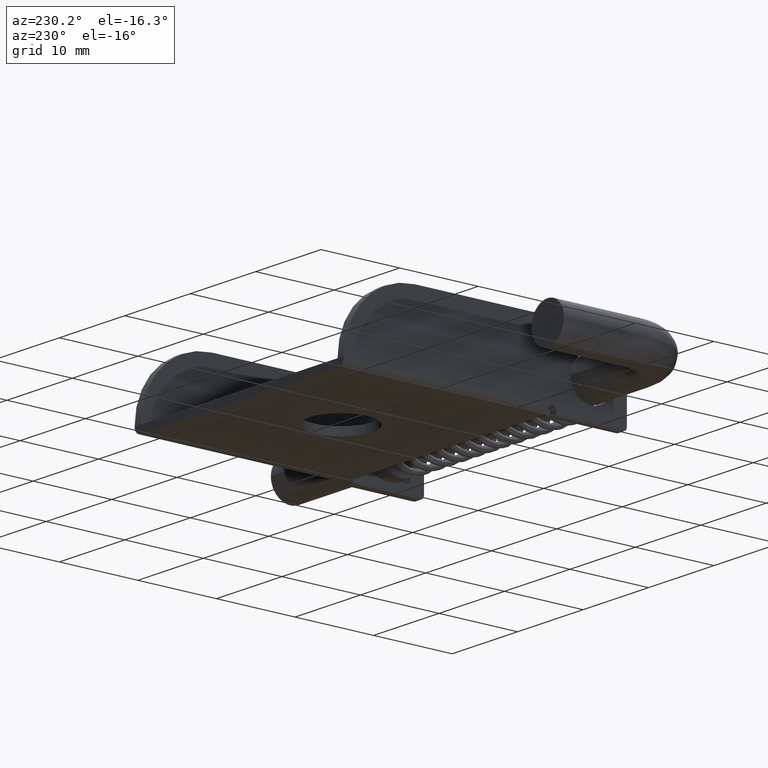
[diagram: clean part render]
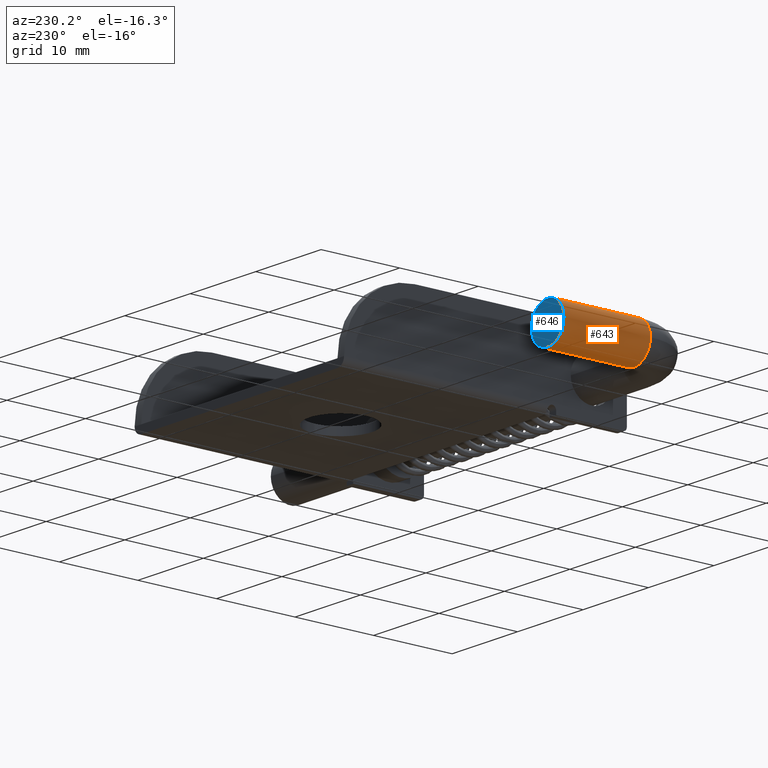
[diagram: same view with the hole feature highlighted: cylindrical wall and planar end face, labeled with their STEP entity ids]
A machine part, auxiliary view. The highlighted faces form one hole feature of diameter 5 mm: the cylindrical wall (entity #643, orange) and its adjacent planar end face (entity #646, blue) — they share a circular edge in the B-rep.
Wall:
#139=CYLINDRICAL_SURFACE('',#693,2.5);
#158=FACE_BOUND('',#220,.T.);
#174=FACE_OUTER_BOUND('',#219,.T.);
#219=EDGE_LOOP('',(#455));
#220=EDGE_LOOP('',(#456));
#273=CIRCLE('',#694,2.5);
#274=CIRCLE('',#695,2.5);
#307=VERTEX_POINT('',#988);
#308=VERTEX_POINT('',#990);
#367=EDGE_CURVE('',#307,#307,#273,.T.);
#368=EDGE_CURVE('',#308,#308,#274,.T.);
#455=ORIENTED_EDGE('',*,*,#367,.T.);
#456=ORIENTED_EDGE('',*,*,#368,.F.);
#643=ADVANCED_FACE('',(#174,#158),#139,.T.);
#693=AXIS2_PLACEMENT_3D('',#987,#784,#785);
#694=AXIS2_PLACEMENT_3D('',#989,#786,#787);
#695=AXIS2_PLACEMENT_3D('',#991,#788,#789);
#784=DIRECTION('center_axis',(1.,0.,0.));
#785=DIRECTION('ref_axis',(0.,-1.,0.));
#786=DIRECTION('center_axis',(1.,-1.60812264967664E-16,0.));
#787=DIRECTION('ref_axis',(-1.60812264967664E-16,-1.,0.));
#788=DIRECTION('center_axis',(1.,-1.60812264967664E-16,0.));
#789=DIRECTION('ref_axis',(-1.60812264967664E-16,-1.,0.));
#987=CARTESIAN_POINT('Origin',(5.,61.,0.));
#988=CARTESIAN_POINT('',(5.,58.5,3.06161699786838E-16));
#989=CARTESIAN_POINT('Origin',(5.,61.,0.));
#990=CARTESIAN_POINT('',(16.,63.5,3.06161699786838E-16));
#991=CARTESIAN_POINT('Origin',(16.,61.,0.));
End face:
#177=FACE_OUTER_BOUND('',#225,.T.);
#225=EDGE_LOOP('',(#461));
#274=CIRCLE('',#695,2.5);
#308=VERTEX_POINT('',#990);
#368=EDGE_CURVE('',#308,#308,#274,.T.);
#461=ORIENTED_EDGE('',*,*,#368,.T.);
#619=PLANE('',#699);
#646=ADVANCED_FACE('',(#177),#619,.T.);
#695=AXIS2_PLACEMENT_3D('',#991,#788,#789);
#699=AXIS2_PLACEMENT_3D('',#996,#796,#797);
#788=DIRECTION('center_axis',(1.,-1.60812264967664E-16,0.));
#789=DIRECTION('ref_axis',(-1.60812264967664E-16,-1.,0.));
#796=DIRECTION('center_axis',(1.,-1.60812264967664E-16,0.));
#797=DIRECTION('ref_axis',(0.,-1.,0.));
#990=CARTESIAN_POINT('',(16.,63.5,3.06161699786838E-16));
#991=CARTESIAN_POINT('Origin',(16.,61.,0.));
#996=CARTESIAN_POINT('Origin',(16.,61.,0.));